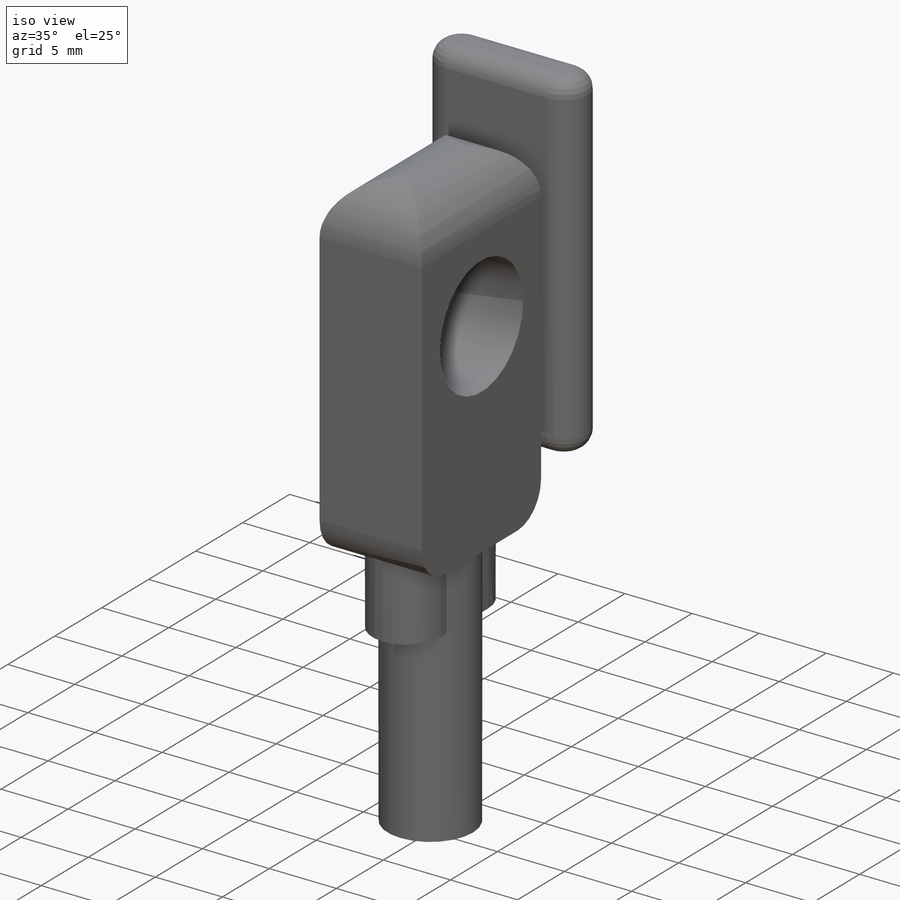
[diagram: iso view]
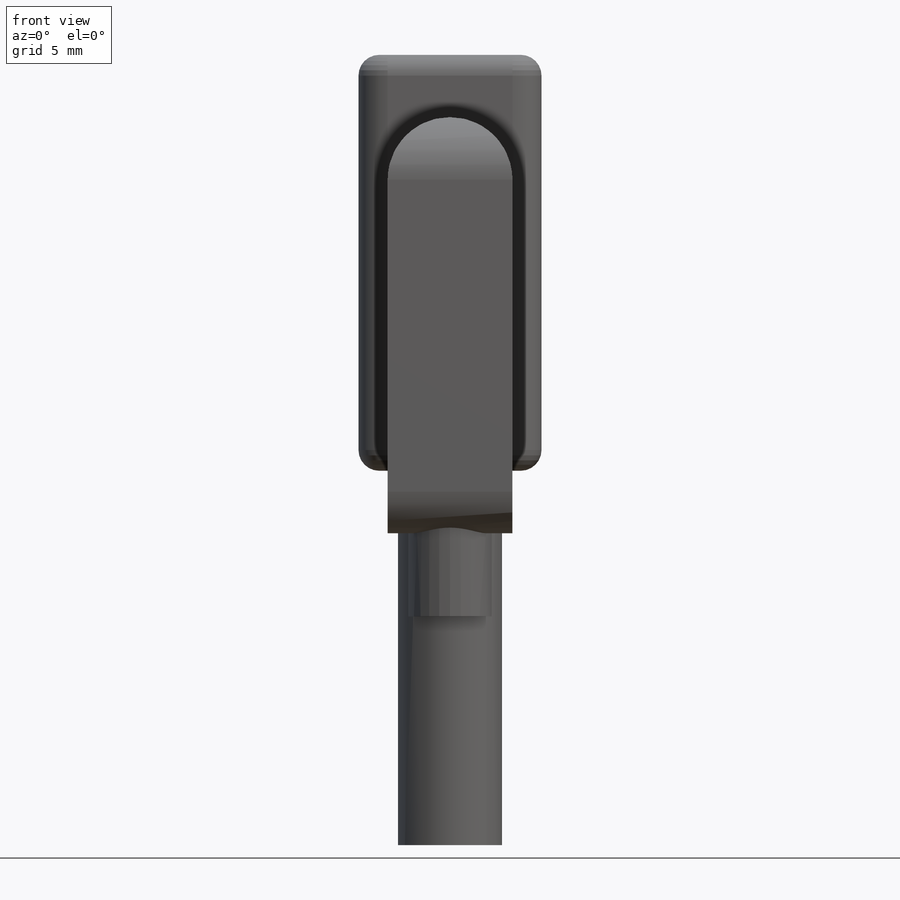
[diagram: front view]
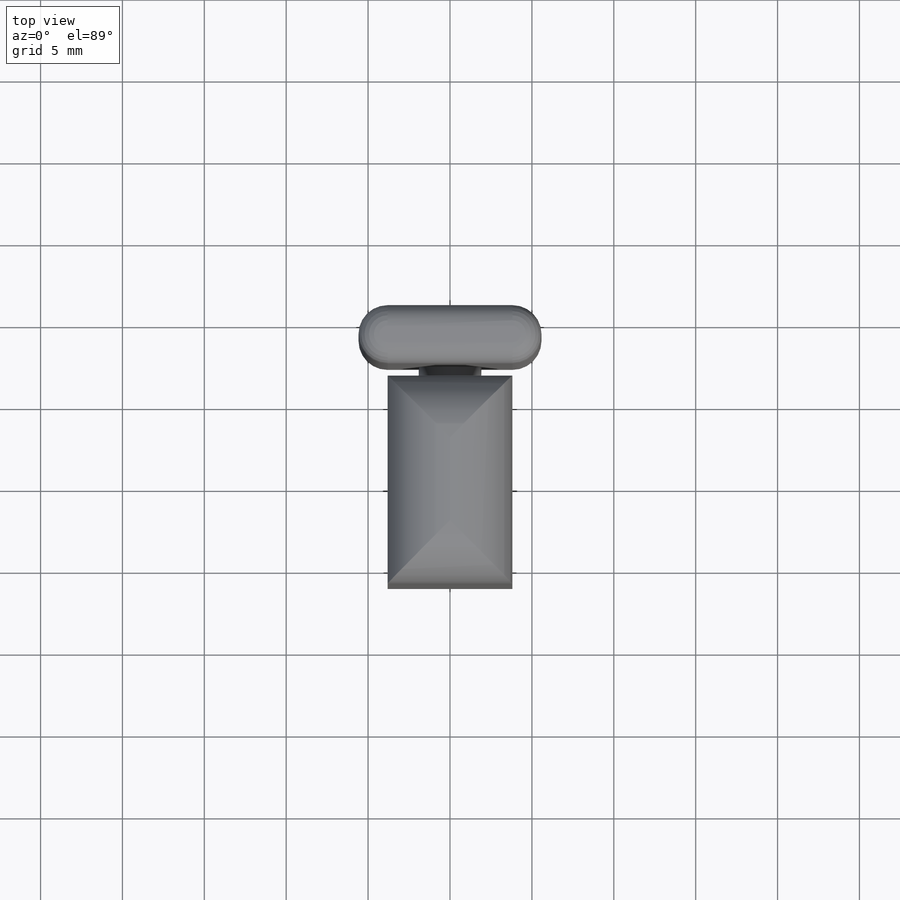
[diagram: top view]
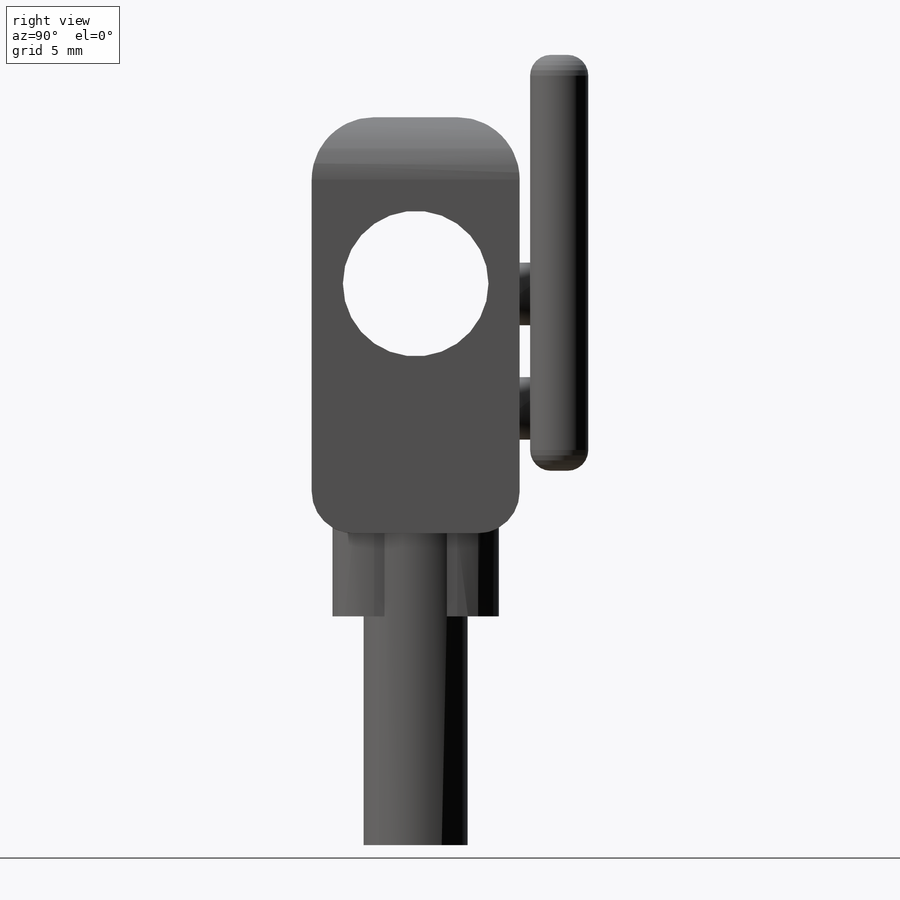
[diagram: right view]
SOLIDWORKS PART (.sldprt)
format: sldprt  version: not decoded by parser v0  size: 475,648 bytes
history: native  units: mm
features: sketch x10, extrude x7, fillet x7, cut_extrude x3, material x1, mirror x1, plane x1 (+13 scaffold rows collapsed)
feature tree (43):
  scaffold x13  (default folders/planes/origin — collapsed)
  material  "Material <not specified>"
  sketch  "Sketch1"  dims[D1=25.4mm D2=15.24mm]
  extrude  "Boss-Extrude1"  Depth=10.16mm
  fillet  "Fillet1"  Radius=2.54mm
  sketch  "Sketch2"  dims[D2=6.35mm D1=13.97mm]
  extrude  "Boss-Extrude2"  Depth=6.35mm
  mirror  "Mirror1"
  sketch  "Sketch3"
  extrude  "Boss-Extrude3"  Depth=5.08mm
  sketch  "Sketch4"  dims[D1=1.27mm D2=1.27mm]
  extrude  "Boss-Extrude4"  Depth=25.4mm
  fillet  "Fillet2"  Radius=2.54mm
  fillet  "Fillet3"  Radius=3.81mm
  sketch  "Sketch5"  dims[D2=3.81mm D1=13.97mm]
  extrude  "Boss-Extrude5"  Depth=1.27mm
  plane  "Plane1"  Offset=21.59mm
  sketch  "Sketch6"  dims[c1.D1=1.27mm c1.D2=7.62mm c2.D1=3.556mm c2.D3=0.635mm]
  extrude  "Boss-Extrude6"  Depth=25.4mm
  fillet  "Fillet4"  Radius=1.27mm
  sketch  "Sketch7"  dims[c1.D1=0.635mm c1.D2=~5.038477mm c2.D2=90.0deg c3.D2=1.016mm c3.D3=0.635mm]
  cut_extrude  "Cut-Extrude1"  Depth=1.016mm
  fillet  "Fillet5"  Radius=0.254mm
  sketch  "Sketch8"  dims[D1=8.89mm D2=6.35mm]
  cut_extrude  "Cut-Extrude2"  [1 undecoded]
  fillet  "Fillet6"  Radius=0.635mm
  sketch  "Sketch9"
  cut_extrude  "Cut-Extrude3"  [1 undecoded]
  sketch  "Sketch10"  dims[D1=6.35mm]
  extrude  "Boss-Extrude7"  Depth=13.97mm
  fillet  "Fillet7"  Radius=2.54mm
decode coverage: 23 of 28 modeling features carry decoded parameters
note: ~ marks probable driven/reference dimensions
note: 2 parameter values undecoded
note: suppression state not decoded; provenance and decode notes live in map.json
